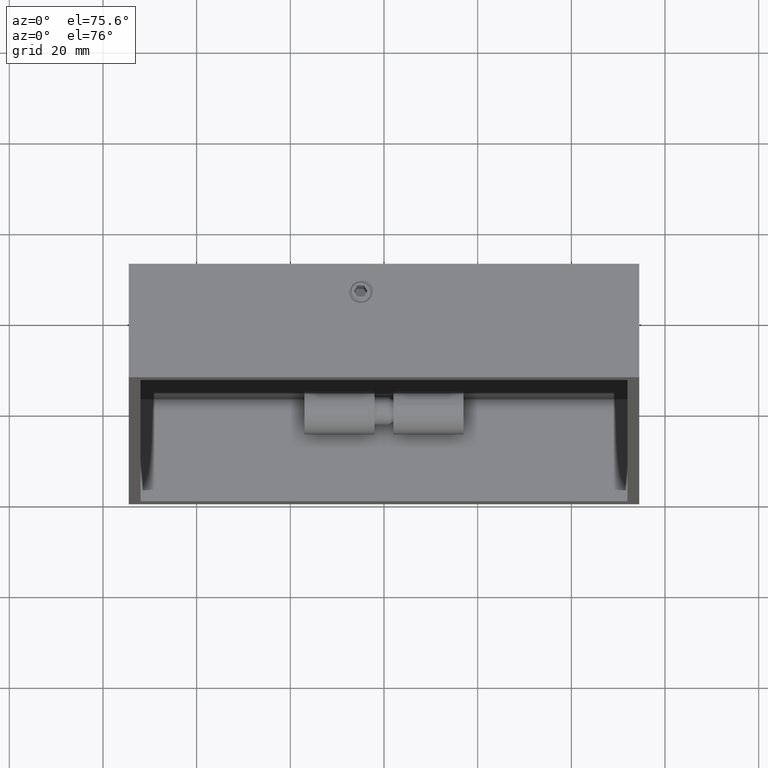
[diagram: clean part render]
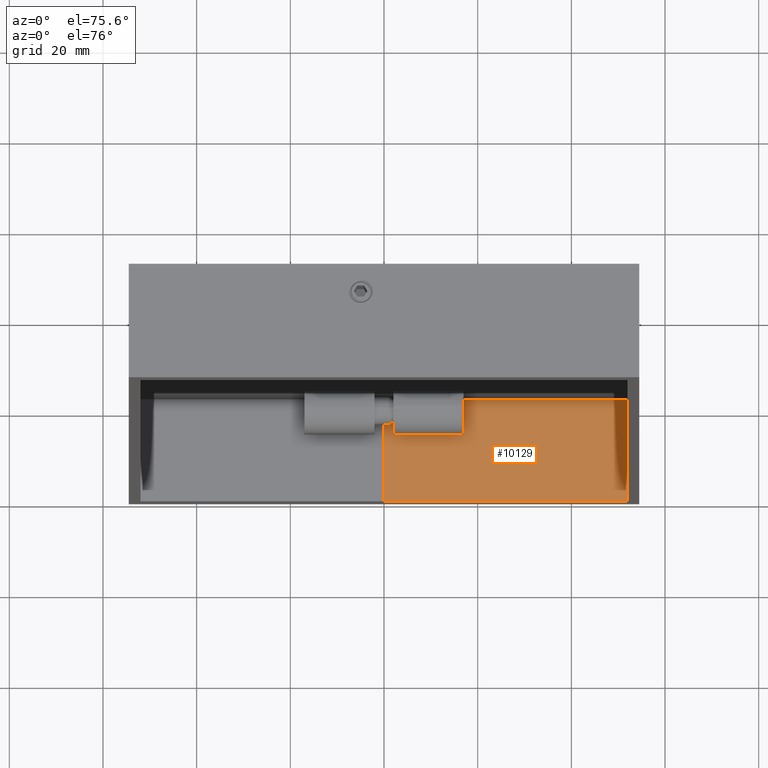
[diagram: same view with one face highlighted and labeled with its STEP entity id]
A machine part, auxiliary view. The second image highlights one B-rep face of the part: STEP entity #10129.
In plain terms, the highlighted planar face has unit normal (0, -0, -1).
Its self-contained STEP definition (entity closure, byte-faithful):
#422 = DIRECTION ( 'NONE',  ( 0.0000000000000000000, -1.000000000000000000, 0.0000000000000000000 ) ) ;
#671 = VERTEX_POINT ( 'NONE', #15088 ) ;
#721 = PLANE ( 'NONE',  #6051 ) ;
#837 = ORIENTED_EDGE ( 'NONE', *, *, #6026, .T. ) ;
#988 = ORIENTED_EDGE ( 'NONE', *, *, #4094, .F. ) ;
#1002 = EDGE_CURVE ( 'NONE', #13782, #13656, #9789, .T. ) ;
#1171 = VECTOR ( 'NONE', #2667, 1000.000000000000000 ) ;
#1407 = DIRECTION ( 'NONE',  ( -1.000000000000000000, 0.0000000000000000000, -2.668805347656625700E-016 ) ) ;
#1927 = LINE ( 'NONE', #6897, #13082 ) ;
#2444 = ORIENTED_EDGE ( 'NONE', *, *, #4453, .F. ) ;
#2667 = DIRECTION ( 'NONE',  ( -1.000000000000000000, 0.0000000000000000000, -2.668805347656625700E-016 ) ) ;
#2670 = CARTESIAN_POINT ( 'NONE',  ( -24.75000000000001100, 22.50000000000000700, 51.99999999999998600 ) ) ;
#2914 = VERTEX_POINT ( 'NONE', #3706 ) ;
#3706 = CARTESIAN_POINT ( 'NONE',  ( 27.25000000000000700, 0.0000000000000000000, 51.99999999999999300 ) ) ;
#3965 = DIRECTION ( 'NONE',  ( -1.000000000000000000, 0.0000000000000000000, -2.668805347656625700E-016 ) ) ;
#4002 = ORIENTED_EDGE ( 'NONE', *, *, #15726, .T. ) ;
#4094 = EDGE_CURVE ( 'NONE', #6901, #10066, #5314, .T. ) ;
#4162 = CARTESIAN_POINT ( 'NONE',  ( -24.75000000000001100, 0.0000000000000000000, 51.99999999999998600 ) ) ;
#4423 = VERTEX_POINT ( 'NONE', #2670 ) ;
#4453 = EDGE_CURVE ( 'NONE', #671, #6901, #8190, .T. ) ;
#4532 = LINE ( 'NONE', #9371, #12795 ) ;
#4896 = DIRECTION ( 'NONE',  ( -2.668805347656625700E-016, 0.0000000000000000000, 1.000000000000000000 ) ) ;
#4962 = EDGE_CURVE ( 'NONE', #2914, #8015, #11716, .T. ) ;
#4964 = CARTESIAN_POINT ( 'NONE',  ( 25.25000000000000700, 22.50000000000000700, 52.00000000000000000 ) ) ;
#5314 = LINE ( 'NONE', #4964, #13171 ) ;
#5367 = FACE_OUTER_BOUND ( 'NONE', #14105, .T. ) ;
#5554 = DIRECTION ( 'NONE',  ( -0.0000000000000000000, -1.000000000000000000, -0.0000000000000000000 ) ) ;
#5621 = DIRECTION ( 'NONE',  ( -0.0000000000000000000, -1.000000000000000000, -0.0000000000000000000 ) ) ;
#5820 = VECTOR ( 'NONE', #3965, 1000.000000000000000 ) ;
#5881 = CARTESIAN_POINT ( 'NONE',  ( 25.25000000000000700, 15.42928578572857400, 52.00000000000000000 ) ) ;
#6026 = EDGE_CURVE ( 'NONE', #671, #2914, #10463, .T. ) ;
#6051 = AXIS2_PLACEMENT_3D ( 'NONE', #14239, #4896, #15580 ) ;
#6237 = DIRECTION ( 'NONE',  ( 0.0000000000000000000, -1.000000000000000000, 0.0000000000000000000 ) ) ;
#6252 = CARTESIAN_POINT ( 'NONE',  ( 25.25000000000000700, 22.50000000000000700, 52.00000000000000000 ) ) ;
#6897 = CARTESIAN_POINT ( 'NONE',  ( -24.75000000000001100, 141.2755348299890600, 51.99999999999998600 ) ) ;
#6901 = VERTEX_POINT ( 'NONE', #6252 ) ;
#6929 = VECTOR ( 'NONE', #5554, 1000.000000000000000 ) ;
#7915 = CARTESIAN_POINT ( 'NONE',  ( -1.387778780781445000E-014, 0.0000000000000000000, 51.99999999999999300 ) ) ;
#8015 = VERTEX_POINT ( 'NONE', #4162 ) ;
#8190 = LINE ( 'NONE', #15916, #10497 ) ;
#8527 = EDGE_CURVE ( 'NONE', #13782, #4423, #10385, .T. ) ;
#9371 = CARTESIAN_POINT ( 'NONE',  ( 10.25000000000000900, 15.42928578572857400, 52.00000000000000000 ) ) ;
#9789 = LINE ( 'NONE', #14824, #11845 ) ;
#9832 = ORIENTED_EDGE ( 'NONE', *, *, #12396, .F. ) ;
#10066 = VERTEX_POINT ( 'NONE', #5881 ) ;
#10129 = ADVANCED_FACE ( 'NONE', ( #5367 ), #721, .F. ) ;
#10385 = LINE ( 'NONE', #12033, #5820 ) ;
#10463 = LINE ( 'NONE', #10848, #6929 ) ;
#10497 = VECTOR ( 'NONE', #1407, 1000.000000000000000 ) ;
#10848 = CARTESIAN_POINT ( 'NONE',  ( 27.25000000000000700, 141.2755348299890600, 51.99999999999999300 ) ) ;
#11716 = LINE ( 'NONE', #7915, #1171 ) ;
#11845 = VECTOR ( 'NONE', #422, 1000.000000000000000 ) ;
#12033 = CARTESIAN_POINT ( 'NONE',  ( -1.387778780781445000E-014, 22.50000000000000700, 51.99999999999999300 ) ) ;
#12396 = EDGE_CURVE ( 'NONE', #4423, #8015, #1927, .T. ) ;
#12561 = ORIENTED_EDGE ( 'NONE', *, *, #1002, .T. ) ;
#12795 = VECTOR ( 'NONE', #14666, 1000.000000000000000 ) ;
#13082 = VECTOR ( 'NONE', #5621, 1000.000000000000000 ) ;
#13171 = VECTOR ( 'NONE', #6237, 1000.000000000000000 ) ;
#13656 = VERTEX_POINT ( 'NONE', #15551 ) ;
#13782 = VERTEX_POINT ( 'NONE', #14794 ) ;
#14105 = EDGE_LOOP ( 'NONE', ( #15353, #12561, #4002, #988, #2444, #837, #14838, #9832 ) ) ;
#14239 = CARTESIAN_POINT ( 'NONE',  ( -1.387778780781445000E-014, 141.2755348299890600, 51.99999999999999300 ) ) ;
#14666 = DIRECTION ( 'NONE',  ( 1.000000000000000000, 0.0000000000000000000, -1.273191542001326800E-016 ) ) ;
#14794 = CARTESIAN_POINT ( 'NONE',  ( 10.25000000000000900, 22.50000000000000700, 51.99999999999999300 ) ) ;
#14824 = CARTESIAN_POINT ( 'NONE',  ( 10.25000000000000900, 22.50000000000000700, 52.00000000000000000 ) ) ;
#14838 = ORIENTED_EDGE ( 'NONE', *, *, #4962, .T. ) ;
#15088 = CARTESIAN_POINT ( 'NONE',  ( 27.25000000000000700, 22.50000000000000700, 51.99999999999999300 ) ) ;
#15353 = ORIENTED_EDGE ( 'NONE', *, *, #8527, .F. ) ;
#15551 = CARTESIAN_POINT ( 'NONE',  ( 10.25000000000000900, 15.42928578572856700, 51.99999999999999300 ) ) ;
#15580 = DIRECTION ( 'NONE',  ( 1.000000000000000000, 0.0000000000000000000, 2.668805347656625700E-016 ) ) ;
#15726 = EDGE_CURVE ( 'NONE', #13656, #10066, #4532, .T. ) ;
#15916 = CARTESIAN_POINT ( 'NONE',  ( -1.387778780781445000E-014, 22.50000000000000700, 51.99999999999999300 ) ) ;